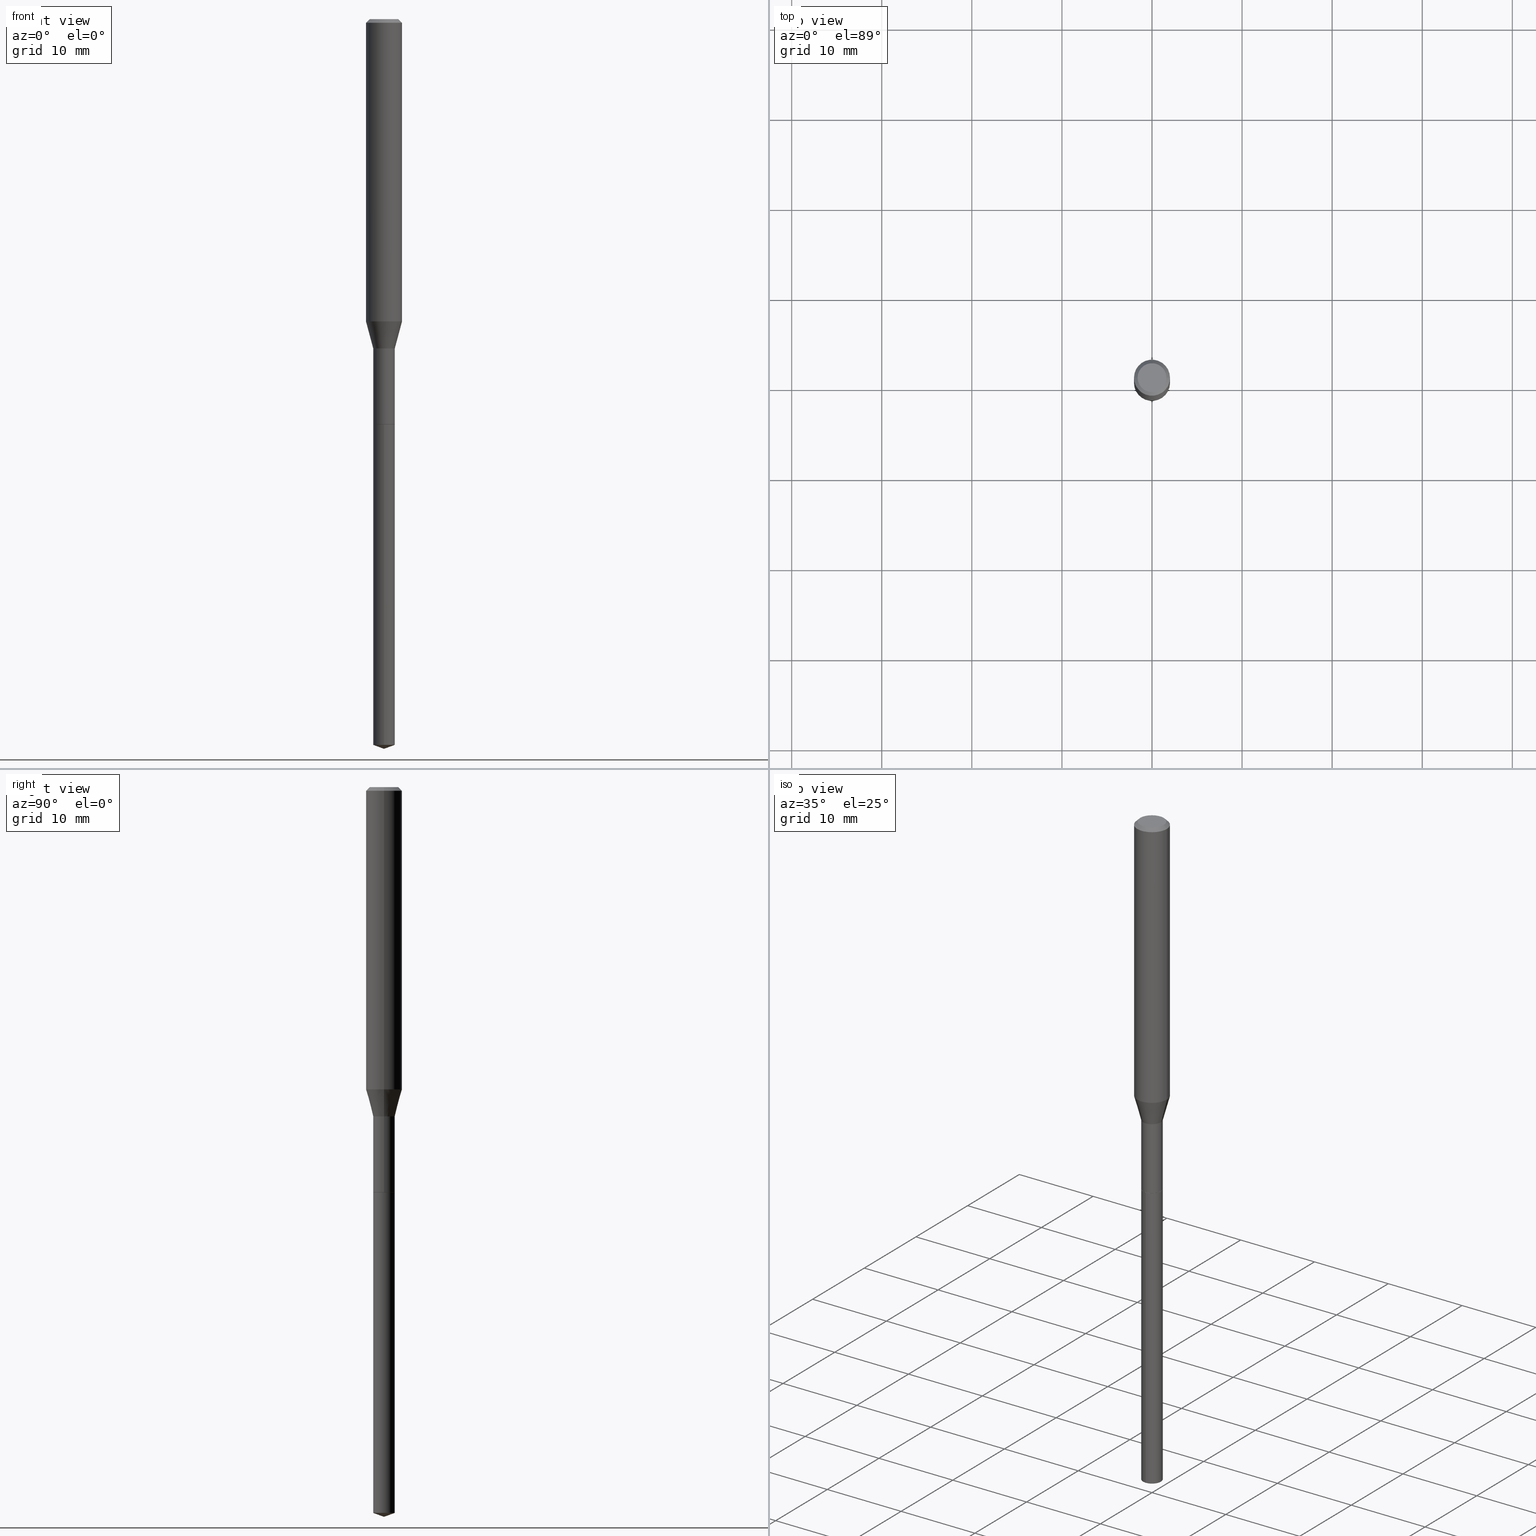
[diagram: canonical four-view strip — front | top / right | iso, engineering-drawing reading convention]
A machine part, canonical four-view strip (front | top / right | iso — engineering-drawing reading convention). The complete STEP part file that produces these views, byte-faithful:
ISO-10303-21;
HEADER;
FILE_DESCRIPTION (( 'STEP AP203' ),
    '1' );
FILE_NAME ('06045.STEP',
    '2024-04-23T19:08:08',
    ( '' ),
    ( '' ),
    'SwSTEP 2.0',
    'SolidWorks 2023',
    '' );
FILE_SCHEMA (( 'CONFIG_CONTROL_DESIGN' ));
ENDSEC;

DATA;
#1 = FACE_OUTER_BOUND ( 'NONE', #131, .T. ) ;
#2 = CIRCLE ( 'NONE', #260, 0.07875000000000016709 ) ;
#3 =( GEOMETRIC_REPRESENTATION_CONTEXT ( 3 ) GLOBAL_UNCERTAINTY_ASSIGNED_CONTEXT ( ( #48 ) ) GLOBAL_UNIT_ASSIGNED_CONTEXT ( ( #127, #315, #465 ) ) REPRESENTATION_CONTEXT ( 'NONE', 'WORKASPACE' ) );
#4 = PLANE ( 'NONE',  #235 ) ;
#5 = ADVANCED_FACE ( 'NONE', ( #172 ), #220, .T. ) ;
#6 = ORIENTED_EDGE ( 'NONE', *, *, #118, .T. ) ;
#7 = FACE_OUTER_BOUND ( 'NONE', #408, .T. ) ;
#8 = AXIS2_PLACEMENT_3D ( 'NONE', #409, #460, #125 ) ;
#9 = VERTEX_POINT ( 'NONE', #205 ) ;
#10 = APPROVAL_DATE_TIME ( #95, #134 ) ;
#11 = PRODUCT_DEFINITION_SHAPE ( 'NONE', 'NONE',  #322 ) ;
#12 = VERTEX_POINT ( 'NONE', #354 ) ;
#13 = APPROVAL_ROLE ( '' ) ;
#14 = ADVANCED_FACE ( 'NONE', ( #356 ), #90, .T. ) ;
#15 = DESIGN_CONTEXT ( 'detailed design', #301, 'design' ) ;
#16 = ORIENTED_EDGE ( 'NONE', *, *, #391, .F. ) ;
#17 = PERSON_AND_ORGANIZATION ( #324, #133 ) ;
#18 = DIRECTION ( 'NONE',  ( -2.445490253052761631E-29, 3.491450625708026576E-15, 1.000000000000000000 ) ) ;
#19 = CARTESIAN_POINT ( 'NONE',  ( 0.000000000000000000, 0.000000000000000000, 0.000000000000000000 ) ) ;
#20 = VECTOR ( 'NONE', #177, 39.37007874015747433 ) ;
#21 = LOCAL_TIME ( 15, 8, 8.000000000000000000, #468 ) ;
#22 = DIRECTION ( 'NONE',  ( -2.445468806185136597E-29, 3.491481338843145583E-15, 1.000000000000000000 ) ) ;
#23 = APPLICATION_CONTEXT ( 'configuration controlled 3d designs of mechanical parts and assemblies' ) ;
#24 = CARTESIAN_POINT ( 'NONE',  ( -8.848051340140497273E-28, 1.263243955916527305E-13, 36.18107874015748138 ) ) ;
#25 = PERSON_AND_ORGANIZATION_ROLE ( 'design_supplier' ) ;
#26 = EDGE_CURVE ( 'NONE', #173, #392, #116, .T. ) ;
#27 = EDGE_LOOP ( 'NONE', ( #316, #129, #382, #277 ) ) ;
#28 = ORIENTED_EDGE ( 'NONE', *, *, #166, .T. ) ;
#29 = DIRECTION ( 'NONE',  ( 1.000000000000000000, -6.982962677686267499E-15, 4.876176775795935232E-29 ) ) ;
#30 = AXIS2_PLACEMENT_3D ( 'NONE', #272, #117, #311 ) ;
#31 = DIRECTION ( 'NONE',  ( 0.7071067811865453523, -7.319954787623248157E-15, -0.7071067811865496822 ) ) ;
#32 = DIRECTION ( 'NONE',  ( 1.000000000000000000, -6.982962677686273810E-15, 0.000000000000000000 ) ) ;
#33 = ADVANCED_FACE ( 'NONE', ( #451 ), #444, .T. ) ;
#34 = DIRECTION ( 'NONE',  ( 0.7071067811868009256, -2.468850131084911578E-15, 0.7071067811862938868 ) ) ;
#35 = CARTESIAN_POINT ( 'NONE',  ( 3.851613369741613486E-31, -5.499083108677987691E-17, -0.01575000000000009726 ) ) ;
#36 = DIRECTION ( 'NONE',  ( -6.982962677686265922E-15, -1.000000000000000000, 0.000000000000000000 ) ) ;
#37 = ADVANCED_BREP_SHAPE_REPRESENTATION ( '06045', ( #223, #56, #196 ), #3 ) ;
#38 = AXIS2_PLACEMENT_3D ( 'NONE', #436, #103, #217 ) ;
#39 = DIRECTION ( 'NONE',  ( -2.445468806185136597E-29, 3.491481338843145583E-15, 1.000000000000000000 ) ) ;
#40 = DIRECTION ( 'NONE',  ( -2.445468806185136597E-29, 3.491481338843145583E-15, 1.000000000000000000 ) ) ;
#41 = DIRECTION ( 'NONE',  ( -2.445468806185136877E-29, 3.491481338843145188E-15, 1.000000000000000000 ) ) ;
#42 = AXIS2_PLACEMENT_3D ( 'NONE', #341, #115, #490 ) ;
#43 = ORIENTED_EDGE ( 'NONE', *, *, #75, .T. ) ;
#44 = CARTESIAN_POINT ( 'NONE',  ( 0.04724999999999994482, -5.352790040580426446E-15, -1.438600000000000323 ) ) ;
#45 = CC_DESIGN_PERSON_AND_ORGANIZATION_ASSIGNMENT ( #171, #472, ( #322 ) ) ;
#46 = ORIENTED_EDGE ( 'NONE', *, *, #89, .F. ) ;
#47 = DIRECTION ( 'NONE',  ( -2.445468806185136877E-29, 3.491481338843145188E-15, 1.000000000000000000 ) ) ;
#48 = UNCERTAINTY_MEASURE_WITH_UNIT (LENGTH_MEASURE( 1.000000000000000082E-05 ), #127, 'distance_accuracy_value', 'NONE');
#49 = ADVANCED_FACE ( 'NONE', ( #335 ), #342, .F. ) ;
#50 = AXIS2_PLACEMENT_3D ( 'NONE', #276, #40, #213 ) ;
#51 = EDGE_LOOP ( 'NONE', ( #435, #275, #119, #467 ) ) ;
#52 = CARTESIAN_POINT ( 'NONE',  ( -8.848051340140497273E-28, 1.263243955916527305E-13, 36.18107874015748138 ) ) ;
#53 = PERSON_AND_ORGANIZATION ( #324, #133 ) ;
#54 = VERTEX_POINT ( 'NONE', #371 ) ;
#55 = APPROVAL_DATE_TIME ( #247, #273 ) ;
#56 = MANIFOLD_SOLID_BREP ( 'Body-Move/Copy2[2]', #304 ) ;
#57 = VERTEX_POINT ( 'NONE', #105 ) ;
#58 = PERSON_AND_ORGANIZATION ( #324, #133 ) ;
#59 = AXIS2_PLACEMENT_3D ( 'NONE', #302, #450, #400 ) ;
#60 = DIRECTION ( 'NONE',  ( 1.000000000000000000, -6.982962677686265922E-15, 0.000000000000000000 ) ) ;
#61 = CC_DESIGN_PERSON_AND_ORGANIZATION_ASSIGNMENT ( #17, #162, ( #93 ) ) ;
#62 = ORIENTED_EDGE ( 'NONE', *, *, #192, .F. ) ;
#63 = ORIENTED_EDGE ( 'NONE', *, *, #97, .T. ) ;
#64 = CARTESIAN_POINT ( 'NONE',  ( 0.07875000000000000056, -5.952550484112880131E-16, -0.01575000000000009726 ) ) ;
#65 = EDGE_CURVE ( 'NONE', #12, #159, #369, .T. ) ;
#66 = DIRECTION ( 'NONE',  ( 1.000000000000000000, -6.982962677686267499E-15, 4.876176775795935232E-29 ) ) ;
#67 = CIRCLE ( 'NONE', #91, 0.04674999999999999295 ) ;
#68 = APPROVAL_PERSON_ORGANIZATION ( #164, #386, #337 ) ;
#69 = CARTESIAN_POINT ( 'NONE',  ( 4.332637083918206987E-29, -6.185857488028401870E-15, -1.771700000000000497 ) ) ;
#70 = CARTESIAN_POINT ( 'NONE',  ( -0.04724999999999997952, -5.267746958062718753E-15, -1.771200000000000552 ) ) ;
#71 = CARTESIAN_POINT ( 'NONE',  ( 4.332637083918206987E-29, -6.185857488028401870E-15, -1.771700000000000497 ) ) ;
#72 = CARTESIAN_POINT ( 'NONE',  ( 9.427742298522557911E-47, -1.346031739168366987E-32, -3.855188123715866879E-18 ) ) ;
#73 = AXIS2_PLACEMENT_3D ( 'NONE', #24, #18, #135 ) ;
#74 = CIRCLE ( 'NONE', #38, 0.04724999999999997952 ) ;
#75 = EDGE_CURVE ( 'NONE', #233, #348, #448, .T. ) ;
#76 = DIRECTION ( 'NONE',  ( -6.561838499445215840E-15, -0.9396926207859094271, 0.3420201433256658263 ) ) ;
#77 = ORIENTED_EDGE ( 'NONE', *, *, #330, .F. ) ;
#78 = CARTESIAN_POINT ( 'NONE',  ( 4.713871149261278955E-47, -6.730158695841834933E-33, -1.927594061857933439E-18 ) ) ;
#79 = ORIENTED_EDGE ( 'NONE', *, *, #309, .F. ) ;
#80 = CARTESIAN_POINT ( 'NONE',  ( 4.332637083918206427E-29, -6.185857488028401081E-15, -1.771700000000000053 ) ) ;
#81 = ADVANCED_FACE ( 'NONE', ( #294 ), #442, .T. ) ;
#82 = AXIS2_PLACEMENT_3D ( 'NONE', #144, #434, #98 ) ;
#83 = ORIENTED_EDGE ( 'NONE', *, *, #401, .F. ) ;
#84 = CARTESIAN_POINT ( 'NONE',  ( -0.04724999999999995870, 3.357314426466470444E-16, -2.324196830145441064E-30 ) ) ;
#85 = ORIENTED_EDGE ( 'NONE', *, *, #175, .T. ) ;
#86 = DIRECTION ( 'NONE',  ( -0.7071067811865453523, 2.468850131082234184E-15, -0.7071067811865496822 ) ) ;
#87 = ORIENTED_EDGE ( 'NONE', *, *, #438, .T. ) ;
#88 = CALENDAR_DATE ( 2024, 23, 4 ) ;
#89 = EDGE_CURVE ( 'NONE', #54, #418, #109, .T. ) ;
#90 = CONICAL_SURFACE ( 'NONE', #73, 108.1684023407353834, 1.221730476396037268 ) ;
#91 = AXIS2_PLACEMENT_3D ( 'NONE', #80, #305, #154 ) ;
#92 = ORIENTED_EDGE ( 'NONE', *, *, #425, .F. ) ;
#93 = PRODUCT ( '06045', '06045', '', ( #357 ) ) ;
#94 = ORIENTED_EDGE ( 'NONE', *, *, #75, .F. ) ;
#95 = DATE_AND_TIME ( #88, #101 ) ;
#96 = CARTESIAN_POINT ( 'NONE',  ( 3.518051424577938245E-29, -5.022845054059750439E-15, -1.438600000000000323 ) ) ;
#97 = EDGE_CURVE ( 'NONE', #203, #161, #262, .T. ) ;
#98 = DIRECTION ( 'NONE',  ( -6.982962677686265922E-15, -1.000000000000000000, 5.781688875479922944E-15 ) ) ;
#99 = ORIENTED_EDGE ( 'NONE', *, *, #118, .F. ) ;
#100 = DATE_TIME_ROLE ( 'classification_date' ) ;
#101 = LOCAL_TIME ( 15, 8, 8.000000000000000000, #241 ) ;
#102 = ORIENTED_EDGE ( 'NONE', *, *, #466, .T. ) ;
#103 = DIRECTION ( 'NONE',  ( -2.445468806185136597E-29, 3.491481338843145583E-15, 1.000000000000000000 ) ) ;
#104 = EDGE_CURVE ( 'NONE', #325, #12, #257, .T. ) ;
#105 = CARTESIAN_POINT ( 'NONE',  ( -0.07875000000000000056, -1.774136962595884491E-15, -0.01575000000000009726 ) ) ;
#106 = CARTESIAN_POINT ( 'NONE',  ( 3.357314426467248951E-16, 0.04724999999998893974, -3.171802406430922705 ) ) ;
#107 = AXIS2_PLACEMENT_3D ( 'NONE', #440, #331, #370 ) ;
#108 = CARTESIAN_POINT ( 'NONE',  ( 0.04724999999999994482, -5.352790040580426446E-15, -1.438600000000000323 ) ) ;
#109 = LINE ( 'NONE', #188, #234 ) ;
#110 = FACE_OUTER_BOUND ( 'NONE', #137, .T. ) ;
#111 = DIRECTION ( 'NONE',  ( -2.445490253052761911E-29, 3.491450625708026576E-15, 1.000000000000000000 ) ) ;
#112 = CYLINDRICAL_SURFACE ( 'NONE', #312, 0.07875000000000008382 ) ;
#113 = CC_DESIGN_PERSON_AND_ORGANIZATION_ASSIGNMENT ( #53, #285, ( #283 ) ) ;
#114 = DIRECTION ( 'NONE',  ( -2.445490253052761911E-29, 3.491450625708026576E-15, 1.000000000000000000 ) ) ;
#115 = DIRECTION ( 'NONE',  ( -2.445468806185136597E-29, 3.491481338843145583E-15, 1.000000000000000000 ) ) ;
#116 = CIRCLE ( 'NONE', #156, 0.04724999999999994482 ) ;
#117 = DIRECTION ( 'NONE',  ( -2.445468806185136597E-29, 3.491481338843145583E-15, 1.000000000000000000 ) ) ;
#118 = EDGE_CURVE ( 'NONE', #244, #233, #480, .T. ) ;
#119 = ORIENTED_EDGE ( 'NONE', *, *, #238, .F. ) ;
#120 = FACE_OUTER_BOUND ( 'NONE', #208, .T. ) ;
#121 = EDGE_LOOP ( 'NONE', ( #253, #6, #246 ) ) ;
#122 = DIRECTION ( 'NONE',  ( -2.445468806185136877E-29, 3.491481338843145188E-15, 1.000000000000000000 ) ) ;
#123 = AXIS2_PLACEMENT_3D ( 'NONE', #72, #295, #439 ) ;
#124 = APPROVAL_PERSON_ORGANIZATION ( #314, #273, #13 ) ;
#125 = DIRECTION ( 'NONE',  ( -6.982962677686265922E-15, -1.000000000000000000, 5.781688875479922944E-15 ) ) ;
#126 = ORIENTED_EDGE ( 'NONE', *, *, #330, .T. ) ;
#127 =( CONVERSION_BASED_UNIT ( 'INCH', #393 ) LENGTH_UNIT ( ) NAMED_UNIT ( #412 ) );
#128 = EDGE_CURVE ( 'NONE', #418, #348, #148, .T. ) ;
#129 = ORIENTED_EDGE ( 'NONE', *, *, #375, .T. ) ;
#130 = AXIS2_PLACEMENT_3D ( 'NONE', #221, #332, #373 ) ;
#131 = EDGE_LOOP ( 'NONE', ( #83, #478, #364, #291 ) ) ;
#132 = PERSON_AND_ORGANIZATION ( #324, #133 ) ;
#133 = ORGANIZATION ( 'UNSPECIFIED', 'UNSPECIFIED', '' ) ;
#134 = APPROVAL ( #317, 'UNSPECIFIED' ) ;
#135 = DIRECTION ( 'NONE',  ( -6.982962677686265922E-15, -1.000000000000000000, 3.475157955500658288E-15 ) ) ;
#136 = CALENDAR_DATE ( 2024, 23, 4 ) ;
#137 = EDGE_LOOP ( 'NONE', ( #394, #271, #168, #328 ) ) ;
#138 = SECURITY_CLASSIFICATION_LEVEL ( 'unclassified' ) ;
#139 = CLOSED_SHELL ( 'NONE', ( #252, #14, #5, #157, #346 ) ) ;
#140 = EDGE_LOOP ( 'NONE', ( #463, #286, #320, #426 ) ) ;
#141 = VECTOR ( 'NONE', #256, 39.37007874015748143 ) ;
#142 = PRODUCT_DEFINITION_FORMATION_WITH_SPECIFIED_SOURCE ( 'ANY', '', #93, .NOT_KNOWN. ) ;
#143 = CARTESIAN_POINT ( 'NONE',  ( 4.332637083918206427E-29, -6.185857488028401081E-15, -1.771700000000000053 ) ) ;
#144 = CARTESIAN_POINT ( 'NONE',  ( 4.332637083918206987E-29, -6.185857488028401870E-15, -1.771700000000000497 ) ) ;
#145 = CYLINDRICAL_SURFACE ( 'NONE', #242, 0.04724999999999999339 ) ;
#146 = DIRECTION ( 'NONE',  ( 1.000000000000000000, -6.982962677686271444E-15, 0.000000000000000000 ) ) ;
#147 = CARTESIAN_POINT ( 'NONE',  ( 3.230563088838193382E-29, -4.612387902927150012E-15, -1.321040399561580037 ) ) ;
#148 = CIRCLE ( 'NONE', #413, 0.04724999999999999339 ) ;
#149 = DIRECTION ( 'NONE',  ( -2.445490253052761631E-29, 3.491450625708026576E-15, 1.000000000000000000 ) ) ;
#150 = VECTOR ( 'NONE', #34, 39.37007874015748854 ) ;
#151 = AXIS2_PLACEMENT_3D ( 'NONE', #240, #457, #383 ) ;
#152 = EDGE_CURVE ( 'NONE', #428, #280, #210, .T. ) ;
#153 = DIRECTION ( 'NONE',  ( 1.000000000000000000, -6.982962677686255667E-15, 0.000000000000000000 ) ) ;
#154 = DIRECTION ( 'NONE',  ( 1.000000000000000000, -6.982962677686255667E-15, 0.000000000000000000 ) ) ;
#155 = CARTESIAN_POINT ( 'NONE',  ( -3.299449865206327187E-16, -0.04725000000000618289, -1.771700000000000053 ) ) ;
#156 = AXIS2_PLACEMENT_3D ( 'NONE', #96, #248, #399 ) ;
#157 = ADVANCED_FACE ( 'NONE', ( #362 ), #326, .T. ) ;
#158 = FACE_OUTER_BOUND ( 'NONE', #251, .T. ) ;
#159 = VERTEX_POINT ( 'NONE', #293 ) ;
#160 = DIRECTION ( 'NONE',  ( -0.2588190451025213501, 5.211531920934551042E-15, 0.9659258262890682012 ) ) ;
#161 = VERTEX_POINT ( 'NONE', #437 ) ;
#162 = PERSON_AND_ORGANIZATION_ROLE ( 'design_owner' ) ;
#163 = EDGE_CURVE ( 'NONE', #392, #280, #218, .T. ) ;
#164 = PERSON_AND_ORGANIZATION ( #324, #133 ) ;
#165 = ORIENTED_EDGE ( 'NONE', *, *, #309, .T. ) ;
#166 = EDGE_CURVE ( 'NONE', #233, #54, #485, .T. ) ;
#167 = AXIS2_PLACEMENT_3D ( 'NONE', #402, #298, #483 ) ;
#168 = ORIENTED_EDGE ( 'NONE', *, *, #243, .T. ) ;
#169 = LOCAL_TIME ( 15, 8, 8.000000000000000000, #333 ) ;
#170 = EDGE_LOOP ( 'NONE', ( #79, #63, #471, #77 ) ) ;
#171 = PERSON_AND_ORGANIZATION ( #324, #133 ) ;
#172 = FACE_OUTER_BOUND ( 'NONE', #307, .T. ) ;
#173 = VERTEX_POINT ( 'NONE', #398 ) ;
#174 = CONICAL_SURFACE ( 'NONE', #367, 0.07875000000000000056, 0.7853981633974452814 ) ;
#175 = EDGE_CURVE ( 'NONE', #57, #161, #454, .T. ) ;
#176 = DIRECTION ( 'NONE',  ( 1.000000000000000000, -6.982962677686269077E-15, 0.000000000000000000 ) ) ;
#177 = DIRECTION ( 'NONE',  ( 0.2588190451025213501, 1.565188264969621968E-15, 0.9659258262890682012 ) ) ;
#178 = DIRECTION ( 'NONE',  ( 6.676917655467982329E-15, 0.9396926207859117586, 0.3420201433256592205 ) ) ;
#179 = DIRECTION ( 'NONE',  ( -2.445468806185136597E-29, 3.491481338843145583E-15, 1.000000000000000000 ) ) ;
#180 = CARTESIAN_POINT ( 'NONE',  ( 0.000000000000000000, 0.000000000000000000, 0.000000000000000000 ) ) ;
#181 = APPROVAL_DATE_TIME ( #449, #386 ) ;
#182 = CARTESIAN_POINT ( 'NONE',  ( 3.230563088838193382E-29, -4.612387902927150012E-15, -1.321040399561580037 ) ) ;
#183 = CC_DESIGN_PERSON_AND_ORGANIZATION_ASSIGNMENT ( #132, #206, ( #142 ) ) ;
#184 = CARTESIAN_POINT ( 'NONE',  ( 0.04674999999999999295, -6.512310993210233293E-15, -1.771700000000000053 ) ) ;
#185 = SHAPE_DEFINITION_REPRESENTATION ( #11, #37 ) ;
#186 = CARTESIAN_POINT ( 'NONE',  ( -0.07875000000000000056, 4.949174797810136167E-16, -0.01575000000000009726 ) ) ;
#187 = VECTOR ( 'NONE', #122, 39.37007874015748143 ) ;
#188 = CARTESIAN_POINT ( 'NONE',  ( -3.299449865206327187E-16, -0.04725000000000618289, -1.771700000000000053 ) ) ;
#189 = CARTESIAN_POINT ( 'NONE',  ( 3.357314426467249937E-16, 0.04724999999999380390, -1.771700000000000719 ) ) ;
#190 = DIRECTION ( 'NONE',  ( 1.000000000000000000, -6.982962677686266711E-15, 4.876176775795935793E-29 ) ) ;
#191 = CARTESIAN_POINT ( 'NONE',  ( 4.332637083918206987E-29, -6.185857488028401870E-15, -1.771700000000000497 ) ) ;
#192 = EDGE_CURVE ( 'NONE', #392, #173, #359, .T. ) ;
#193 = EDGE_LOOP ( 'NONE', ( #395, #102, #62, #92 ) ) ;
#194 = CARTESIAN_POINT ( 'NONE',  ( -0.07875000000000008382, 5.595524044110794920E-16, -3.873661383575742696E-30 ) ) ;
#195 = AXIS2_PLACEMENT_3D ( 'NONE', #476, #292, #176 ) ;
#196 = AXIS2_PLACEMENT_3D ( 'NONE', #19, #355, #209 ) ;
#197 = LINE ( 'NONE', #303, #345 ) ;
#198 = ORIENTED_EDGE ( 'NONE', *, *, #445, .T. ) ;
#199 = EDGE_CURVE ( 'NONE', #54, #233, #229, .T. ) ;
#200 = EDGE_LOOP ( 'NONE', ( #415, #323 ) ) ;
#201 = APPLICATION_PROTOCOL_DEFINITION ( 'international standard', 'config_control_design', 1994, #23 ) ;
#202 = AXIS2_PLACEMENT_3D ( 'NONE', #147, #264, #378 ) ;
#203 = VERTEX_POINT ( 'NONE', #377 ) ;
#204 = APPROVAL_STATUS ( 'not_yet_approved' ) ;
#205 = CARTESIAN_POINT ( 'NONE',  ( -0.06300000000000000044, 4.674220642376242452E-16, -3.855188123719040041E-18 ) ) ;
#206 = PERSON_AND_ORGANIZATION_ROLE ( 'creator' ) ;
#207 = ADVANCED_FACE ( 'NONE', ( #397 ), #424, .T. ) ;
#208 = EDGE_LOOP ( 'NONE', ( #284, #423, #420, #287 ) ) ;
#209 = DIRECTION ( 'NONE',  ( 1.000000000000000000, 0.000000000000000000, 0.000000000000000000 ) ) ;
#210 = CIRCLE ( 'NONE', #202, 0.07875000000000016709 ) ;
#211 = VECTOR ( 'NONE', #265, 39.37007874015748854 ) ;
#212 = ORIENTED_EDGE ( 'NONE', *, *, #26, .F. ) ;
#213 = DIRECTION ( 'NONE',  ( 1.000000000000000000, -6.982962677686265922E-15, 0.000000000000000000 ) ) ;
#214 = ORIENTED_EDGE ( 'NONE', *, *, #128, .F. ) ;
#215 = EDGE_LOOP ( 'NONE', ( #236, #239, #430, #212 ) ) ;
#216 = CALENDAR_DATE ( 2024, 23, 4 ) ;
#217 = DIRECTION ( 'NONE',  ( 1.000000000000000000, -6.982962677686269077E-15, 0.000000000000000000 ) ) ;
#218 = LINE ( 'NONE', #108, #20 ) ;
#219 = CC_DESIGN_APPROVAL ( #273, ( #142 ) ) ;
#220 = CONICAL_SURFACE ( 'NONE', #327, 108.1684023407353834, 1.221730476396037268 ) ;
#221 = CARTESIAN_POINT ( 'NONE',  ( 1.156207980809505875E-28, 4.167115967319141897E-15, -1.771700000000000053 ) ) ;
#222 = AXIS2_PLACEMENT_3D ( 'NONE', #143, #225, #153 ) ;
#223 = MANIFOLD_SOLID_BREP ( 'Body-Move/Copy2[1]', #139 ) ;
#224 = DIRECTION ( 'NONE',  ( -2.445468806185136597E-29, 3.491481338843145583E-15, 1.000000000000000000 ) ) ;
#225 = DIRECTION ( 'NONE',  ( -2.445468806185136597E-29, 3.491481338843145583E-15, 1.000000000000000000 ) ) ;
#226 = EDGE_CURVE ( 'NONE', #313, #159, #459, .T. ) ;
#227 = CARTESIAN_POINT ( 'NONE',  ( -0.04674999999999999295, -5.851029531886444129E-15, -1.771700000000000053 ) ) ;
#228 = FACE_OUTER_BOUND ( 'NONE', #27, .T. ) ;
#229 = CIRCLE ( 'NONE', #319, 0.04724999999999999339 ) ;
#230 = PRODUCT_RELATED_PRODUCT_CATEGORY ( 'detail', '', ( #93 ) ) ;
#231 = DIRECTION ( 'NONE',  ( 2.445468806185136597E-29, -3.491481338843145583E-15, -1.000000000000000000 ) ) ;
#232 = DIRECTION ( 'NONE',  ( 2.445490253052761351E-29, -3.491450625708026576E-15, -1.000000000000000000 ) ) ;
#233 = VERTEX_POINT ( 'NONE', #106 ) ;
#234 = VECTOR ( 'NONE', #111, 39.37007874015748143 ) ;
#235 = AXIS2_PLACEMENT_3D ( 'NONE', #191, #232, #380 ) ;
#236 = ORIENTED_EDGE ( 'NONE', *, *, #466, .F. ) ;
#237 = FACE_OUTER_BOUND ( 'NONE', #200, .T. ) ;
#238 = EDGE_CURVE ( 'NONE', #159, #313, #74, .T. ) ;
#239 = ORIENTED_EDGE ( 'NONE', *, *, #226, .T. ) ;
#240 = CARTESIAN_POINT ( 'NONE',  ( 3.518051424577938245E-29, -5.022845054059750439E-15, -1.438600000000000323 ) ) ;
#241 = COORDINATED_UNIVERSAL_TIME_OFFSET ( 5, 0, .BEHIND. ) ;
#242 = AXIS2_PLACEMENT_3D ( 'NONE', #69, #149, #487 ) ;
#243 = EDGE_CURVE ( 'NONE', #280, #161, #484, .T. ) ;
#244 = VERTEX_POINT ( 'NONE', #446 ) ;
#245 = DATE_TIME_ROLE ( 'creation_date' ) ;
#246 = ORIENTED_EDGE ( 'NONE', *, *, #199, .F. ) ;
#247 = DATE_AND_TIME ( #427, #250 ) ;
#248 = DIRECTION ( 'NONE',  ( -2.445468806185136597E-29, 3.491481338843145583E-15, 1.000000000000000000 ) ) ;
#249 = CIRCLE ( 'NONE', #30, 0.06300000000000000044 ) ;
#250 = LOCAL_TIME ( 15, 8, 8.000000000000000000, #361 ) ;
#251 = EDGE_LOOP ( 'NONE', ( #87, #165 ) ) ;
#252 = ADVANCED_FACE ( 'NONE', ( #338 ), #145, .T. ) ;
#253 = ORIENTED_EDGE ( 'NONE', *, *, #445, .F. ) ;
#254 = CARTESIAN_POINT ( 'NONE',  ( 0.000000000000000000, 0.000000000000000000, 0.000000000000000000 ) ) ;
#255 = CARTESIAN_POINT ( 'NONE',  ( 4.332637083918206427E-29, -6.185857488028401081E-15, -1.771700000000000053 ) ) ;
#256 = DIRECTION ( 'NONE',  ( -2.445468806185136877E-29, 3.491481338843145188E-15, 1.000000000000000000 ) ) ;
#257 = CIRCLE ( 'NONE', #167, 0.04674999999999999295 ) ;
#258 = DIRECTION ( 'NONE',  ( 1.000000000000000000, -6.982962677686255667E-15, 0.000000000000000000 ) ) ;
#259 = ADVANCED_FACE ( 'NONE', ( #110 ), #479, .T. ) ;
#260 = AXIS2_PLACEMENT_3D ( 'NONE', #182, #261, #146 ) ;
#261 = DIRECTION ( 'NONE',  ( -2.445468806185136597E-29, 3.491481338843145583E-15, 1.000000000000000000 ) ) ;
#262 = LINE ( 'NONE', #64, #318 ) ;
#263 = FACE_OUTER_BOUND ( 'NONE', #170, .T. ) ;
#264 = DIRECTION ( 'NONE',  ( -2.445468806185136597E-29, 3.491481338843145583E-15, 1.000000000000000000 ) ) ;
#265 = DIRECTION ( 'NONE',  ( -0.7071067811868009256, 7.493145998871269239E-15, 0.7071067811862938868 ) ) ;
#266 = VECTOR ( 'NONE', #76, 39.37007874015748143 ) ;
#267 = ADVANCED_FACE ( 'NONE', ( #334 ), #372, .T. ) ;
#268 = CARTESIAN_POINT ( 'NONE',  ( 3.851613369741613486E-31, -5.499083108677987691E-17, -0.01575000000000009726 ) ) ;
#269 = ORIENTED_EDGE ( 'NONE', *, *, #104, .F. ) ;
#270 = LINE ( 'NONE', #411, #211 ) ;
#271 = ORIENTED_EDGE ( 'NONE', *, *, #152, .T. ) ;
#272 = CARTESIAN_POINT ( 'NONE',  ( 9.427742298522557911E-47, -1.346031739168366987E-32, -3.855188123715866879E-18 ) ) ;
#273 = APPROVAL ( #204, 'UNSPECIFIED' ) ;
#274 = AXIS2_PLACEMENT_3D ( 'NONE', #254, #179, #66 ) ;
#275 = ORIENTED_EDGE ( 'NONE', *, *, #381, .T. ) ;
#276 = CARTESIAN_POINT ( 'NONE',  ( 3.851613369741613486E-31, -5.499083108677987691E-17, -0.01575000000000009726 ) ) ;
#277 = ORIENTED_EDGE ( 'NONE', *, *, #243, .F. ) ;
#278 = APPLICATION_PROTOCOL_DEFINITION ( 'international standard', 'config_control_design', 1994, #301 ) ;
#279 = EDGE_CURVE ( 'NONE', #280, #428, #2, .T. ) ;
#280 = VERTEX_POINT ( 'NONE', #481 ) ;
#281 = AXIS2_PLACEMENT_3D ( 'NONE', #180, #224, #190 ) ;
#282 = VECTOR ( 'NONE', #86, 39.37007874015748143 ) ;
#283 = SECURITY_CLASSIFICATION ( '', '', #138 ) ;
#284 = ORIENTED_EDGE ( 'NONE', *, *, #192, .T. ) ;
#285 = PERSON_AND_ORGANIZATION_ROLE ( 'classification_officer' ) ;
#286 = ORIENTED_EDGE ( 'NONE', *, *, #104, .T. ) ;
#287 = ORIENTED_EDGE ( 'NONE', *, *, #163, .F. ) ;
#288 = CALENDAR_DATE ( 2024, 23, 4 ) ;
#289 = ADVANCED_FACE ( 'NONE', ( #228 ), #112, .T. ) ;
#290 = CIRCLE ( 'NONE', #50, 0.07875000000000000056 ) ;
#291 = ORIENTED_EDGE ( 'NONE', *, *, #152, .F. ) ;
#292 = DIRECTION ( 'NONE',  ( -2.445468806185136597E-29, 3.491481338843145583E-15, 1.000000000000000000 ) ) ;
#293 = CARTESIAN_POINT ( 'NONE',  ( 0.04724999999999997952, -6.514056733879657952E-15, -1.771200000000000552 ) ) ;
#294 = FACE_OUTER_BOUND ( 'NONE', #51, .T. ) ;
#295 = DIRECTION ( 'NONE',  ( -2.445468806185136597E-29, 3.491481338843145583E-15, 1.000000000000000000 ) ) ;
#296 = ADVANCED_FACE ( 'NONE', ( #263 ), #417, .T. ) ;
#297 = LINE ( 'NONE', #186, #282 ) ;
#298 = DIRECTION ( 'NONE',  ( -2.445468806185136597E-29, 3.491481338843145583E-15, 1.000000000000000000 ) ) ;
#299 = AXIS2_PLACEMENT_3D ( 'NONE', #78, #343, #310 ) ;
#300 = DIRECTION ( 'NONE',  ( -2.445468806185136597E-29, 3.491481338843145583E-15, 1.000000000000000000 ) ) ;
#301 = APPLICATION_CONTEXT ( 'configuration controlled 3d designs of mechanical parts and assemblies' ) ;
#302 = CARTESIAN_POINT ( 'NONE',  ( 0.000000000000000000, 0.000000000000000000, 0.000000000000000000 ) ) ;
#303 = CARTESIAN_POINT ( 'NONE',  ( -0.04724999999999994482, -4.687113611413103789E-15, -1.438600000000000323 ) ) ;
#304 = CLOSED_SHELL ( 'NONE', ( #81, #296, #289, #365, #33, #267, #340, #259, #453, #407, #49, #207 ) ) ;
#305 = DIRECTION ( 'NONE',  ( -2.445468806185136597E-29, 3.491481338843145583E-15, 1.000000000000000000 ) ) ;
#306 = LOCAL_TIME ( 15, 8, 8.000000000000000000, #353 ) ;
#307 = EDGE_LOOP ( 'NONE', ( #99, #198, #473 ) ) ;
#308 = LINE ( 'NONE', #84, #387 ) ;
#309 = EDGE_CURVE ( 'NONE', #203, #9, #470, .T. ) ;
#310 = DIRECTION ( 'NONE',  ( -1.000000000000000000, 6.982962677686265922E-15, -4.876176775795935793E-29 ) ) ;
#311 = DIRECTION ( 'NONE',  ( 1.000000000000000000, -6.982962677686265922E-15, 4.875905316334701673E-29 ) ) ;
#312 = AXIS2_PLACEMENT_3D ( 'NONE', #366, #300, #29 ) ;
#313 = VERTEX_POINT ( 'NONE', #70 ) ;
#314 = PERSON_AND_ORGANIZATION ( #324, #133 ) ;
#315 =( NAMED_UNIT ( * ) PLANE_ANGLE_UNIT ( ) SI_UNIT ( $, .RADIAN. ) );
#316 = ORIENTED_EDGE ( 'NONE', *, *, #279, .T. ) ;
#317 = APPROVAL_STATUS ( 'not_yet_approved' ) ;
#318 = VECTOR ( 'NONE', #31, 39.37007874015748143 ) ;
#319 = AXIS2_PLACEMENT_3D ( 'NONE', #374, #396, #36 ) ;
#320 = ORIENTED_EDGE ( 'NONE', *, *, #65, .T. ) ;
#321 = APPROVAL_ROLE ( '' ) ;
#322 = PRODUCT_DEFINITION ( 'UNKNOWN', '', #142, #15 ) ;
#323 = ORIENTED_EDGE ( 'NONE', *, *, #475, .T. ) ;
#324 = PERSON ( 'UNSPECIFIED', 'UNSPECIFIED', 'UNSPECIFIED', ('UNSPECIFIED'), ('UNSPECIFIED'), ('UNSPECIFIED') ) ;
#325 = VERTEX_POINT ( 'NONE', #227 ) ;
#326 = CYLINDRICAL_SURFACE ( 'NONE', #82, 0.04724999999999999339 ) ;
#327 = AXIS2_PLACEMENT_3D ( 'NONE', #52, #474, #388 ) ;
#328 = ORIENTED_EDGE ( 'NONE', *, *, #175, .F. ) ;
#329 = CARTESIAN_POINT ( 'NONE',  ( 0.07875000000000008382, -5.499083108677941345E-16, 3.839989210939303220E-30 ) ) ;
#330 = EDGE_CURVE ( 'NONE', #9, #57, #297, .T. ) ;
#331 = DIRECTION ( 'NONE',  ( -2.445490253052761631E-29, 3.491450625708026576E-15, 1.000000000000000000 ) ) ;
#332 = DIRECTION ( 'NONE',  ( -2.438088387897960049E-29, 3.491481338843145188E-15, 1.000000000000000000 ) ) ;
#333 = COORDINATED_UNIVERSAL_TIME_OFFSET ( 5, 0, .BEHIND. ) ;
#334 = FACE_OUTER_BOUND ( 'NONE', #215, .T. ) ;
#335 = FACE_OUTER_BOUND ( 'NONE', #456, .T. ) ;
#336 = DIRECTION ( 'NONE',  ( -1.000000000000000000, 6.982962677686265922E-15, 0.000000000000000000 ) ) ;
#337 = APPROVAL_ROLE ( '' ) ;
#338 = FACE_OUTER_BOUND ( 'NONE', #360, .T. ) ;
#339 = DIRECTION ( 'NONE',  ( -2.445490253052761631E-29, 3.491450625708026576E-15, 1.000000000000000000 ) ) ;
#340 = ADVANCED_FACE ( 'NONE', ( #1 ), #443, .T. ) ;
#341 = CARTESIAN_POINT ( 'NONE',  ( 3.518051424577938245E-29, -5.022845054059750439E-15, -1.438600000000000323 ) ) ;
#342 = PLANE ( 'NONE',  #130 ) ;
#343 = DIRECTION ( 'NONE',  ( 2.438088387897960049E-29, -3.491481338843145188E-15, -1.000000000000000000 ) ) ;
#344 = ORIENTED_EDGE ( 'NONE', *, *, #475, .F. ) ;
#345 = VECTOR ( 'NONE', #160, 39.37007874015747433 ) ;
#346 = ADVANCED_FACE ( 'NONE', ( #237 ), #4, .F. ) ;
#347 = PLANE ( 'NONE',  #299 ) ;
#348 = VERTEX_POINT ( 'NONE', #189 ) ;
#349 = LINE ( 'NONE', #194, #414 ) ;
#350 = AXIS2_PLACEMENT_3D ( 'NONE', #35, #403, #336 ) ;
#351 = CC_DESIGN_APPROVAL ( #134, ( #322 ) ) ;
#352 = ORIENTED_EDGE ( 'NONE', *, *, #97, .F. ) ;
#353 = COORDINATED_UNIVERSAL_TIME_OFFSET ( 5, 0, .BEHIND. ) ;
#354 = CARTESIAN_POINT ( 'NONE',  ( 0.04674999999999999295, -6.512310993210233293E-15, -1.771700000000000053 ) ) ;
#355 = DIRECTION ( 'NONE',  ( 0.000000000000000000, 0.000000000000000000, 1.000000000000000000 ) ) ;
#356 = FACE_OUTER_BOUND ( 'NONE', #121, .T. ) ;
#357 = MECHANICAL_CONTEXT ( 'NONE', #23, 'mechanical' ) ;
#358 = CC_DESIGN_DATE_AND_TIME_ASSIGNMENT ( #429, #245, ( #322 ) ) ;
#359 = CIRCLE ( 'NONE', #433, 0.04724999999999994482 ) ;
#360 = EDGE_LOOP ( 'NONE', ( #390, #43, #214, #46 ) ) ;
#361 = COORDINATED_UNIVERSAL_TIME_OFFSET ( 5, 0, .BEHIND. ) ;
#362 = FACE_OUTER_BOUND ( 'NONE', #385, .T. ) ;
#363 = ORIENTED_EDGE ( 'NONE', *, *, #89, .T. ) ;
#364 = ORIENTED_EDGE ( 'NONE', *, *, #163, .T. ) ;
#365 = ADVANCED_FACE ( 'NONE', ( #120 ), #477, .T. ) ;
#366 = CARTESIAN_POINT ( 'NONE',  ( 0.000000000000000000, 0.000000000000000000, 0.000000000000000000 ) ) ;
#367 = AXIS2_PLACEMENT_3D ( 'NONE', #268, #231, #416 ) ;
#368 = CC_DESIGN_SECURITY_CLASSIFICATION ( #283, ( #142 ) ) ;
#369 = LINE ( 'NONE', #184, #150 ) ;
#370 = DIRECTION ( 'NONE',  ( -6.982962677686265922E-15, -1.000000000000000000, 0.000000000000000000 ) ) ;
#371 = CARTESIAN_POINT ( 'NONE',  ( -3.299449865205985511E-16, -0.04725000000001107481, -3.171802406430922705 ) ) ;
#372 = CYLINDRICAL_SURFACE ( 'NONE', #59, 0.04724999999999995870 ) ;
#373 = DIRECTION ( 'NONE',  ( 1.000000000000000000, -6.982962677686265922E-15, 4.876176775795935793E-29 ) ) ;
#374 = CARTESIAN_POINT ( 'NONE',  ( 7.756573872120744429E-29, -1.107424591101695963E-14, -3.171802406430922705 ) ) ;
#375 = EDGE_CURVE ( 'NONE', #428, #57, #349, .T. ) ;
#376 = CIRCLE ( 'NONE', #8, 0.04724999999999999339 ) ;
#377 = CARTESIAN_POINT ( 'NONE',  ( 0.06300000000000000044, -5.137332111354472216E-16, -3.855188123712532709E-18 ) ) ;
#378 = DIRECTION ( 'NONE',  ( 1.000000000000000000, -6.982962677686271444E-15, 0.000000000000000000 ) ) ;
#379 = CARTESIAN_POINT ( 'NONE',  ( -0.07875000000000016709, -4.052835498516069633E-15, -1.321040399561580037 ) ) ;
#380 = DIRECTION ( 'NONE',  ( 6.982962677686265922E-15, 1.000000000000000000, -3.491450625708026576E-15 ) ) ;
#381 = EDGE_CURVE ( 'NONE', #325, #313, #270, .T. ) ;
#382 = ORIENTED_EDGE ( 'NONE', *, *, #482, .F. ) ;
#383 = DIRECTION ( 'NONE',  ( 1.000000000000000000, -6.982962677686273810E-15, 0.000000000000000000 ) ) ;
#384 = AXIS2_PLACEMENT_3D ( 'NONE', #441, #22, #60 ) ;
#385 = EDGE_LOOP ( 'NONE', ( #94, #28, #363, #344 ) ) ;
#386 = APPROVAL ( #464, 'UNSPECIFIED' ) ;
#387 = VECTOR ( 'NONE', #47, 39.37007874015748143 ) ;
#388 = DIRECTION ( 'NONE',  ( -6.982962677686265922E-15, -1.000000000000000000, 3.475157955500658288E-15 ) ) ;
#389 =( LENGTH_UNIT ( ) NAMED_UNIT ( * ) SI_UNIT ( $, .METRE. ) );
#390 = ORIENTED_EDGE ( 'NONE', *, *, #199, .T. ) ;
#391 = EDGE_CURVE ( 'NONE', #12, #325, #67, .T. ) ;
#392 = VERTEX_POINT ( 'NONE', #44 ) ;
#393 = LENGTH_MEASURE_WITH_UNIT ( LENGTH_MEASURE( 0.02539999999999999897 ), #389 );
#394 = ORIENTED_EDGE ( 'NONE', *, *, #375, .F. ) ;
#395 = ORIENTED_EDGE ( 'NONE', *, *, #238, .T. ) ;
#396 = DIRECTION ( 'NONE',  ( -2.445490253052761631E-29, 3.491450625708026576E-15, 1.000000000000000000 ) ) ;
#397 = FACE_OUTER_BOUND ( 'NONE', #140, .T. ) ;
#398 = CARTESIAN_POINT ( 'NONE',  ( -0.04724999999999994482, -5.267746958062718753E-15, -1.438600000000000323 ) ) ;
#399 = DIRECTION ( 'NONE',  ( 1.000000000000000000, -6.982962677686273810E-15, 0.000000000000000000 ) ) ;
#400 = DIRECTION ( 'NONE',  ( 1.000000000000000000, -6.982962677686266711E-15, 4.876176775795935793E-29 ) ) ;
#401 = EDGE_CURVE ( 'NONE', #173, #428, #197, .T. ) ;
#402 = CARTESIAN_POINT ( 'NONE',  ( 4.332637083918206427E-29, -6.185857488028401081E-15, -1.771700000000000053 ) ) ;
#403 = DIRECTION ( 'NONE',  ( 2.445468806185136597E-29, -3.491481338843145583E-15, -1.000000000000000000 ) ) ;
#404 = VECTOR ( 'NONE', #178, 39.37007874015748854 ) ;
#405 = CARTESIAN_POINT ( 'NONE',  ( 7.798669083370217775E-29, -1.113423604538289965E-14, -3.189000000000000501 ) ) ;
#406 = CARTESIAN_POINT ( 'NONE',  ( 7.798592422154514874E-29, -1.113434487430587824E-14, -3.189000000000000501 ) ) ;
#407 = ADVANCED_FACE ( 'NONE', ( #158 ), #347, .F. ) ;
#408 = EDGE_LOOP ( 'NONE', ( #352, #410, #126, #85 ) ) ;
#409 = CARTESIAN_POINT ( 'NONE',  ( 4.332637083918206987E-29, -6.185857488028401870E-15, -1.771700000000000497 ) ) ;
#410 = ORIENTED_EDGE ( 'NONE', *, *, #438, .F. ) ;
#411 = CARTESIAN_POINT ( 'NONE',  ( -0.04674999999999999295, -5.853678759060554541E-15, -1.771700000000000053 ) ) ;
#412 = DIMENSIONAL_EXPONENTS ( 1.000000000000000000, 0.000000000000000000, 0.000000000000000000, 0.000000000000000000, 0.000000000000000000, 0.000000000000000000, 0.000000000000000000 ) ;
#413 = AXIS2_PLACEMENT_3D ( 'NONE', #71, #339, #489 ) ;
#414 = VECTOR ( 'NONE', #41, 39.37007874015748143 ) ;
#415 = ORIENTED_EDGE ( 'NONE', *, *, #128, .T. ) ;
#416 = DIRECTION ( 'NONE',  ( -1.000000000000000000, 6.982962677686265922E-15, 0.000000000000000000 ) ) ;
#417 = CONICAL_SURFACE ( 'NONE', #350, 0.07875000000000000056, 0.7853981633974452814 ) ;
#418 = VERTEX_POINT ( 'NONE', #155 ) ;
#419 = CC_DESIGN_DATE_AND_TIME_ASSIGNMENT ( #431, #100, ( #283 ) ) ;
#420 = ORIENTED_EDGE ( 'NONE', *, *, #279, .F. ) ;
#421 = PERSON_AND_ORGANIZATION ( #324, #133 ) ;
#422 = CC_DESIGN_APPROVAL ( #386, ( #283 ) ) ;
#423 = ORIENTED_EDGE ( 'NONE', *, *, #401, .T. ) ;
#424 = CONICAL_SURFACE ( 'NONE', #222, 0.04674999999999999295, 0.7853981633978068810 ) ;
#425 = EDGE_CURVE ( 'NONE', #159, #392, #458, .T. ) ;
#426 = ORIENTED_EDGE ( 'NONE', *, *, #226, .F. ) ;
#427 = CALENDAR_DATE ( 2024, 23, 4 ) ;
#428 = VERTEX_POINT ( 'NONE', #379 ) ;
#429 = DATE_AND_TIME ( #136, #21 ) ;
#430 = ORIENTED_EDGE ( 'NONE', *, *, #425, .T. ) ;
#431 = DATE_AND_TIME ( #288, #306 ) ;
#432 = VECTOR ( 'NONE', #114, 39.37007874015748143 ) ;
#433 = AXIS2_PLACEMENT_3D ( 'NONE', #488, #447, #32 ) ;
#434 = DIRECTION ( 'NONE',  ( -2.445490253052761631E-29, 3.491450625708026576E-15, 1.000000000000000000 ) ) ;
#435 = ORIENTED_EDGE ( 'NONE', *, *, #391, .T. ) ;
#436 = CARTESIAN_POINT ( 'NONE',  ( 4.331414349515115307E-29, -6.184111747358981944E-15, -1.771200000000000552 ) ) ;
#437 = CARTESIAN_POINT ( 'NONE',  ( 0.07875000000000000056, -6.048991419545733705E-16, -0.01575000000000009726 ) ) ;
#438 = EDGE_CURVE ( 'NONE', #9, #203, #249, .T. ) ;
#439 = DIRECTION ( 'NONE',  ( 1.000000000000000000, -6.982962677686265922E-15, 4.875905316334701673E-29 ) ) ;
#440 = CARTESIAN_POINT ( 'NONE',  ( 7.756573872120744429E-29, -1.107424591101695963E-14, -3.171802406430922705 ) ) ;
#441 = CARTESIAN_POINT ( 'NONE',  ( 3.851613369741613486E-31, -5.499083108677987691E-17, -0.01575000000000009726 ) ) ;
#442 = CONICAL_SURFACE ( 'NONE', #469, 0.04674999999999999295, 0.7853981633978068810 ) ;
#443 = CONICAL_SURFACE ( 'NONE', #151, 0.04724999999999994482, 0.2617993877991500740 ) ;
#444 = CYLINDRICAL_SURFACE ( 'NONE', #281, 0.04724999999999995870 ) ;
#445 = EDGE_CURVE ( 'NONE', #244, #54, #452, .T. ) ;
#446 = CARTESIAN_POINT ( 'NONE',  ( 7.798668416985257645E-29, -1.113423604538289965E-14, -3.189000000000000501 ) ) ;
#447 = DIRECTION ( 'NONE',  ( -2.445468806185136597E-29, 3.491481338843145583E-15, 1.000000000000000000 ) ) ;
#448 = LINE ( 'NONE', #486, #432 ) ;
#449 = DATE_AND_TIME ( #216, #169 ) ;
#450 = DIRECTION ( 'NONE',  ( -2.445468806185136597E-29, 3.491481338843145583E-15, 1.000000000000000000 ) ) ;
#451 = FACE_OUTER_BOUND ( 'NONE', #193, .T. ) ;
#452 = LINE ( 'NONE', #406, #266 ) ;
#453 = ADVANCED_FACE ( 'NONE', ( #7 ), #174, .T. ) ;
#454 = CIRCLE ( 'NONE', #384, 0.07875000000000000056 ) ;
#455 = CARTESIAN_POINT ( 'NONE',  ( 0.04724999999999995870, -3.299449865206758102E-16, 2.303993526563577728E-30 ) ) ;
#456 = EDGE_LOOP ( 'NONE', ( #16, #269 ) ) ;
#457 = DIRECTION ( 'NONE',  ( -2.445468806185136597E-29, 3.491481338843145583E-15, 1.000000000000000000 ) ) ;
#458 = LINE ( 'NONE', #455, #187 ) ;
#459 = CIRCLE ( 'NONE', #195, 0.04724999999999997952 ) ;
#460 = DIRECTION ( 'NONE',  ( -2.445490253052761631E-29, 3.491450625708026576E-15, 1.000000000000000000 ) ) ;
#461 = CC_DESIGN_PERSON_AND_ORGANIZATION_ASSIGNMENT ( #58, #25, ( #142 ) ) ;
#462 = APPROVAL_PERSON_ORGANIZATION ( #421, #134, #321 ) ;
#463 = ORIENTED_EDGE ( 'NONE', *, *, #381, .F. ) ;
#464 = APPROVAL_STATUS ( 'not_yet_approved' ) ;
#465 =( NAMED_UNIT ( * ) SI_UNIT ( $, .STERADIAN. ) SOLID_ANGLE_UNIT ( ) );
#466 = EDGE_CURVE ( 'NONE', #313, #173, #308, .T. ) ;
#467 = ORIENTED_EDGE ( 'NONE', *, *, #65, .F. ) ;
#468 = COORDINATED_UNIVERSAL_TIME_OFFSET ( 5, 0, .BEHIND. ) ;
#469 = AXIS2_PLACEMENT_3D ( 'NONE', #255, #39, #258 ) ;
#470 = CIRCLE ( 'NONE', #123, 0.06300000000000000044 ) ;
#471 = ORIENTED_EDGE ( 'NONE', *, *, #482, .T. ) ;
#472 = PERSON_AND_ORGANIZATION_ROLE ( 'creator' ) ;
#473 = ORIENTED_EDGE ( 'NONE', *, *, #166, .F. ) ;
#474 = DIRECTION ( 'NONE',  ( -2.445490253052761631E-29, 3.491450625708026576E-15, 1.000000000000000000 ) ) ;
#475 = EDGE_CURVE ( 'NONE', #348, #418, #376, .T. ) ;
#476 = CARTESIAN_POINT ( 'NONE',  ( 4.331414349515115307E-29, -6.184111747358981944E-15, -1.771200000000000552 ) ) ;
#477 = CONICAL_SURFACE ( 'NONE', #42, 0.04724999999999994482, 0.2617993877991500740 ) ;
#478 = ORIENTED_EDGE ( 'NONE', *, *, #26, .T. ) ;
#479 = CYLINDRICAL_SURFACE ( 'NONE', #274, 0.07875000000000008382 ) ;
#480 = LINE ( 'NONE', #405, #404 ) ;
#481 = CARTESIAN_POINT ( 'NONE',  ( 0.07875000000000016709, -5.162296213794944147E-15, -1.321040399561580037 ) ) ;
#482 = EDGE_CURVE ( 'NONE', #161, #57, #290, .T. ) ;
#483 = DIRECTION ( 'NONE',  ( 1.000000000000000000, -6.982962677686255667E-15, 0.000000000000000000 ) ) ;
#484 = LINE ( 'NONE', #329, #141 ) ;
#485 = CIRCLE ( 'NONE', #107, 0.04724999999999999339 ) ;
#486 = CARTESIAN_POINT ( 'NONE',  ( 3.357314426466905796E-16, 0.04724999999999380390, -1.771700000000000719 ) ) ;
#487 = DIRECTION ( 'NONE',  ( -6.982962677686265922E-15, -1.000000000000000000, 5.781688875479922944E-15 ) ) ;
#488 = CARTESIAN_POINT ( 'NONE',  ( 3.518051424577938245E-29, -5.022845054059750439E-15, -1.438600000000000323 ) ) ;
#489 = DIRECTION ( 'NONE',  ( -6.982962677686265922E-15, -1.000000000000000000, 5.781688875479922944E-15 ) ) ;
#490 = DIRECTION ( 'NONE',  ( 1.000000000000000000, -6.982962677686273810E-15, 0.000000000000000000 ) ) ;
ENDSEC;
END-ISO-10303-21;
